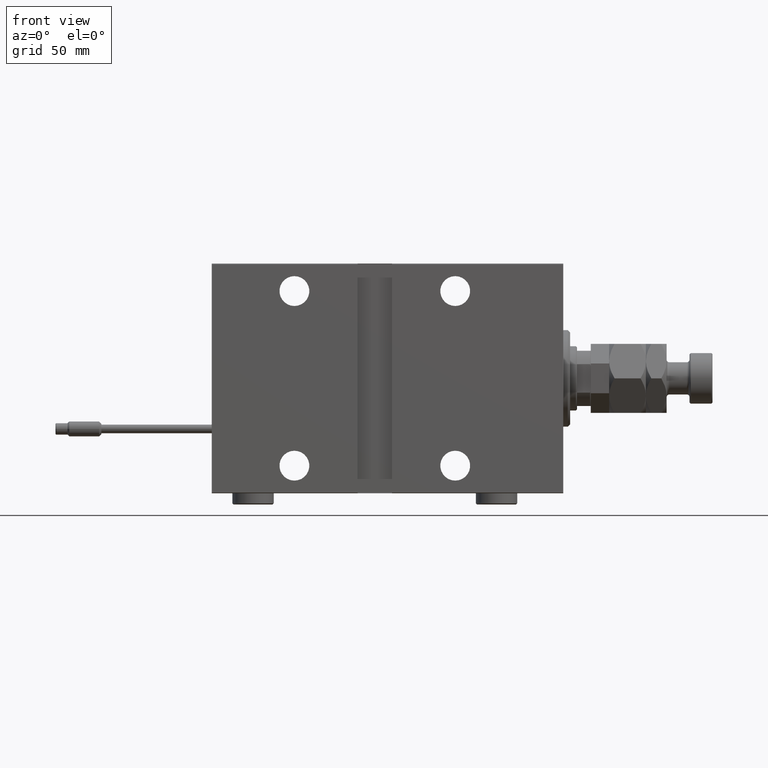
[diagram: clean part render]
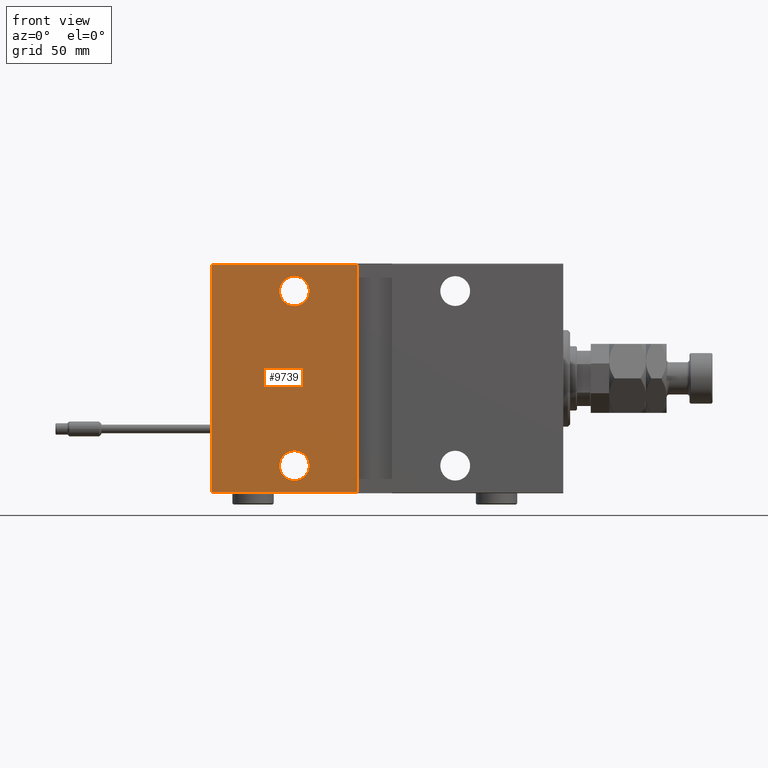
[diagram: same view with one face highlighted and labeled with its STEP entity id]
A machine part, front view. The second image highlights one B-rep face of the part: STEP entity #9739.
In plain terms, the highlighted planar face has unit normal (-0, 1, -0).
Its self-contained STEP definition (entity closure, byte-faithful):
#544 = CIRCLE ( 'NONE', #11290, 6.499999999999999112 ) ;
#1444 = CARTESIAN_POINT ( 'NONE',  ( 153.0000000000000000, 37.49999999999999289, 49.70000000000000284 ) ) ;
#1877 = EDGE_CURVE ( 'NONE', #53143, #18139, #41895, .T. ) ;
#2355 = DIRECTION ( 'NONE',  ( 0.000000000000000000, 0.000000000000000000, -1.000000000000000000 ) ) ;
#2815 = CARTESIAN_POINT ( 'NONE',  ( 117.0000000000000142, 37.49999999999999289, 37.99999999999999289 ) ) ;
#3585 = ORIENTED_EDGE ( 'NONE', *, *, #47662, .T. ) ;
#7113 = DIRECTION ( 'NONE',  ( 0.000000000000000000, -1.000000000000000000, -1.387778780781445182E-16 ) ) ;
#8865 = DIRECTION ( 'NONE',  ( 0.000000000000000000, 0.000000000000000000, -1.000000000000000000 ) ) ;
#9218 = CARTESIAN_POINT ( 'NONE',  ( 117.0000000000000000, 37.50000000000000711, -38.00000000000000000 ) ) ;
#9339 = LINE ( 'NONE', #30091, #36002 ) ;
#9739 = ADVANCED_FACE ( 'NONE', ( #14263, #38533, #10225 ), #29667, .F. ) ;
#10202 = EDGE_CURVE ( 'NONE', #15636, #49568, #544, .T. ) ;
#10225 = FACE_OUTER_BOUND ( 'NONE', #27129, .T. ) ;
#10828 = CIRCLE ( 'NONE', #40959, 6.499999999999999112 ) ;
#10967 = CARTESIAN_POINT ( 'NONE',  ( 117.0000000000000142, 37.49999999999999289, 37.99999999999999289 ) ) ;
#11027 = ORIENTED_EDGE ( 'NONE', *, *, #10202, .T. ) ;
#11290 = AXIS2_PLACEMENT_3D ( 'NONE', #10967, #27171, #2355 ) ;
#12103 = EDGE_CURVE ( 'NONE', #48398, #18139, #25354, .T. ) ;
#13373 = VERTEX_POINT ( 'NONE', #27326 ) ;
#14263 = FACE_BOUND ( 'NONE', #47328, .T. ) ;
#14575 = VERTEX_POINT ( 'NONE', #50182 ) ;
#15636 = VERTEX_POINT ( 'NONE', #16434 ) ;
#16038 = CARTESIAN_POINT ( 'NONE',  ( 153.0000000000000000, 37.50000000000000711, -49.70000000000001705 ) ) ;
#16434 = CARTESIAN_POINT ( 'NONE',  ( 117.0000000000000142, 37.49999999999999289, 31.49999999999999289 ) ) ;
#17020 = DIRECTION ( 'NONE',  ( 0.000000000000000000, -1.000000000000000000, -1.387778780781445182E-16 ) ) ;
#17467 = CARTESIAN_POINT ( 'NONE',  ( 117.0000000000000000, 37.50000000000000711, -38.00000000000000000 ) ) ;
#17789 = CARTESIAN_POINT ( 'NONE',  ( 153.0000000000000000, 37.50000000000000711, -50.00000000000000711 ) ) ;
#17842 = ORIENTED_EDGE ( 'NONE', *, *, #12103, .F. ) ;
#18139 = VERTEX_POINT ( 'NONE', #42349 ) ;
#18587 = EDGE_CURVE ( 'NONE', #14575, #13373, #52119, .T. ) ;
#19768 = DIRECTION ( 'NONE',  ( 0.000000000000000000, 0.000000000000000000, -1.000000000000000000 ) ) ;
#20075 = ORIENTED_EDGE ( 'NONE', *, *, #42580, .T. ) ;
#20123 = VECTOR ( 'NONE', #49862, 1000.000000000000000 ) ;
#21003 = ORIENTED_EDGE ( 'NONE', *, *, #41625, .T. ) ;
#21313 = AXIS2_PLACEMENT_3D ( 'NONE', #17789, #34236, #26689 ) ;
#21945 = CIRCLE ( 'NONE', #46080, 6.499999999999999112 ) ;
#23474 = CARTESIAN_POINT ( 'NONE',  ( 89.49999999999998579, 37.49999999999999289, 49.69999999999997442 ) ) ;
#23915 = EDGE_CURVE ( 'NONE', #53143, #27242, #45510, .T. ) ;
#25354 = LINE ( 'NONE', #38256, #20123 ) ;
#25403 = DIRECTION ( 'NONE',  ( 0.000000000000000000, 0.000000000000000000, -1.000000000000000000 ) ) ;
#25793 = DIRECTION ( 'NONE',  ( -1.000000000000000000, 0.000000000000000000, 0.000000000000000000 ) ) ;
#26689 = DIRECTION ( 'NONE',  ( 0.000000000000000000, 1.387778780781445182E-16, -1.000000000000000000 ) ) ;
#27129 = EDGE_LOOP ( 'NONE', ( #17842, #3585, #45675, #47323 ) ) ;
#27171 = DIRECTION ( 'NONE',  ( 0.000000000000000000, -1.000000000000000000, -1.387778780781445182E-16 ) ) ;
#27242 = VERTEX_POINT ( 'NONE', #39022 ) ;
#27326 = CARTESIAN_POINT ( 'NONE',  ( 117.0000000000000000, 37.50000000000000711, -44.50000000000000000 ) ) ;
#29667 = PLANE ( 'NONE',  #21313 ) ;
#29768 = DIRECTION ( 'NONE',  ( 1.000000000000000000, 0.000000000000000000, 0.000000000000000000 ) ) ;
#30091 = CARTESIAN_POINT ( 'NONE',  ( 153.0000000000000000, 37.50000000000000711, -49.70000000000001705 ) ) ;
#33641 = EDGE_LOOP ( 'NONE', ( #20075, #11027 ) ) ;
#33649 = DIRECTION ( 'NONE',  ( 0.000000000000000000, -1.000000000000000000, -1.387778780781445182E-16 ) ) ;
#34236 = DIRECTION ( 'NONE',  ( 0.000000000000000000, -1.000000000000000000, -1.387778780781445182E-16 ) ) ;
#36002 = VECTOR ( 'NONE', #25793, 1000.000000000000000 ) ;
#36945 = ORIENTED_EDGE ( 'NONE', *, *, #18587, .T. ) ;
#37411 = DIRECTION ( 'NONE',  ( 1.387778780781444196E-16, 1.387778780781444196E-16, -1.000000000000000000 ) ) ;
#38256 = CARTESIAN_POINT ( 'NONE',  ( 153.0000000000000000, 37.50000000000000711, -50.00000000000000711 ) ) ;
#38533 = FACE_BOUND ( 'NONE', #33641, .T. ) ;
#39022 = CARTESIAN_POINT ( 'NONE',  ( 89.50000000000000000, 37.50000000000000711, -49.70000000000001705 ) ) ;
#40663 = CARTESIAN_POINT ( 'NONE',  ( 89.50000000000000000, 37.50000000000000711, -50.00000000000009237 ) ) ;
#40959 = AXIS2_PLACEMENT_3D ( 'NONE', #2815, #7113, #19768 ) ;
#41123 = VECTOR ( 'NONE', #37411, 1000.000000000000000 ) ;
#41625 = EDGE_CURVE ( 'NONE', #13373, #14575, #21945, .T. ) ;
#41895 = LINE ( 'NONE', #1444, #45764 ) ;
#42349 = CARTESIAN_POINT ( 'NONE',  ( 153.0000000000000000, 37.49999999999999289, 49.70000000000000284 ) ) ;
#42580 = EDGE_CURVE ( 'NONE', #49568, #15636, #10828, .T. ) ;
#45218 = AXIS2_PLACEMENT_3D ( 'NONE', #17467, #33649, #8865 ) ;
#45510 = LINE ( 'NONE', #40663, #41123 ) ;
#45675 = ORIENTED_EDGE ( 'NONE', *, *, #23915, .F. ) ;
#45764 = VECTOR ( 'NONE', #29768, 1000.000000000000000 ) ;
#46080 = AXIS2_PLACEMENT_3D ( 'NONE', #9218, #17020, #25403 ) ;
#47323 = ORIENTED_EDGE ( 'NONE', *, *, #1877, .T. ) ;
#47328 = EDGE_LOOP ( 'NONE', ( #36945, #21003 ) ) ;
#47662 = EDGE_CURVE ( 'NONE', #48398, #27242, #9339, .T. ) ;
#48398 = VERTEX_POINT ( 'NONE', #16038 ) ;
#49568 = VERTEX_POINT ( 'NONE', #53316 ) ;
#49862 = DIRECTION ( 'NONE',  ( 0.000000000000000000, -1.387778780781445182E-16, 1.000000000000000000 ) ) ;
#50182 = CARTESIAN_POINT ( 'NONE',  ( 117.0000000000000000, 37.50000000000000711, -31.50000000000000000 ) ) ;
#52119 = CIRCLE ( 'NONE', #45218, 6.499999999999999112 ) ;
#53143 = VERTEX_POINT ( 'NONE', #23474 ) ;
#53316 = CARTESIAN_POINT ( 'NONE',  ( 117.0000000000000142, 37.49999999999999289, 44.49999999999999289 ) ) ;